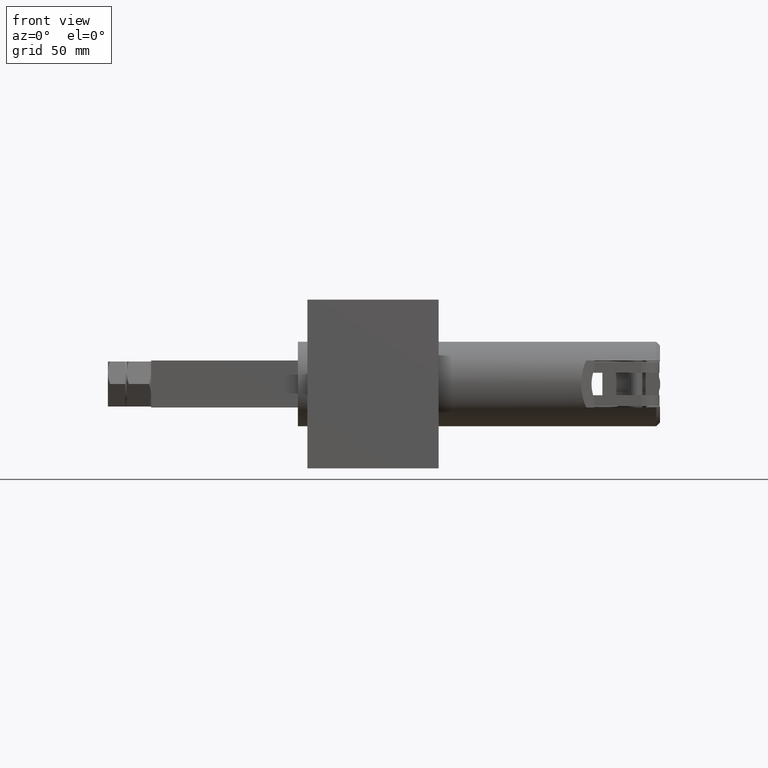
[diagram: clean part render]
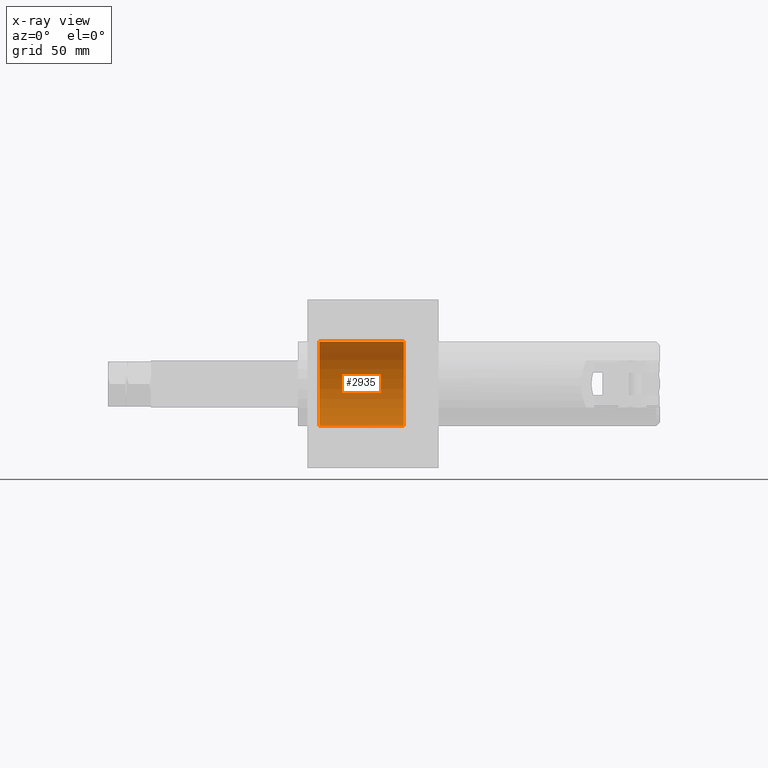
[diagram: x-ray — body ghosted, one internal face saturated and labeled with its STEP entity id]
A machine part, front view, then the same camera in x-ray: the body is ghosted and one INTERNAL B-rep face — a face not visible from any outside direction — is saturated and labeled: STEP entity #2935.
In plain terms, the highlighted cylindrical surface (partial cylindrical patch) has radius 22.5 mm, axis along (-1, 0, 0).
Its self-contained STEP definition (entity closure, byte-faithful):
#99 = ORIENTED_EDGE ( 'NONE', *, *, #3013, .F. ) ;
#145 = EDGE_CURVE ( 'NONE', #2420, #4259, #2871, .T. ) ;
#161 = CARTESIAN_POINT ( 'NONE',  ( -28.60000000000001200, 39.59999999999999400, 2.755364296100348800E-015 ) ) ;
#359 = VECTOR ( 'NONE', #1783, 1000.000000000000000 ) ;
#573 = VECTOR ( 'NONE', #1114, 1000.000000000000000 ) ;
#586 = DIRECTION ( 'NONE',  ( -1.541976423090494900E-016, 0.0000000000000000000, -1.000000000000000000 ) ) ;
#778 = CARTESIAN_POINT ( 'NONE',  ( -28.60000000000001600, 39.59999999999999400, -22.50000000000000000 ) ) ;
#939 = EDGE_LOOP ( 'NONE', ( #2053, #2711, #3952, #99 ) ) ;
#1072 = CARTESIAN_POINT ( 'NONE',  ( 16.39999999999998400, 39.59999999999999400, -22.50000000000000700 ) ) ;
#1114 = DIRECTION ( 'NONE',  ( -1.000000000000000000, 0.0000000000000000000, 1.224606353822377300E-016 ) ) ;
#1516 = AXIS2_PLACEMENT_3D ( 'NONE', #1890, #4891, #2322 ) ;
#1566 = FACE_OUTER_BOUND ( 'NONE', #939, .T. ) ;
#1596 = CARTESIAN_POINT ( 'NONE',  ( 16.39999999999999100, 39.59999999999999400, 22.50000000000000000 ) ) ;
#1686 = CARTESIAN_POINT ( 'NONE',  ( 16.39999999999998800, 39.59999999999999400, -2.755364296100348800E-015 ) ) ;
#1783 = DIRECTION ( 'NONE',  ( -1.000000000000000000, 0.0000000000000000000, 1.224606353822377300E-016 ) ) ;
#1808 = VERTEX_POINT ( 'NONE', #1072 ) ;
#1890 = CARTESIAN_POINT ( 'NONE',  ( 16.39999999999998800, 39.59999999999999400, -2.755364296100348800E-015 ) ) ;
#2015 = CARTESIAN_POINT ( 'NONE',  ( 16.39999999999999100, 39.59999999999999400, 22.50000000000000000 ) ) ;
#2053 = ORIENTED_EDGE ( 'NONE', *, *, #2605, .F. ) ;
#2322 = DIRECTION ( 'NONE',  ( -1.541976423090494900E-016, 0.0000000000000000000, -1.000000000000000000 ) ) ;
#2420 = VERTEX_POINT ( 'NONE', #1596 ) ;
#2605 = EDGE_CURVE ( 'NONE', #2420, #1808, #5192, .T. ) ;
#2711 = ORIENTED_EDGE ( 'NONE', *, *, #145, .T. ) ;
#2871 = LINE ( 'NONE', #2015, #573 ) ;
#2883 = VERTEX_POINT ( 'NONE', #778 ) ;
#2889 = CARTESIAN_POINT ( 'NONE',  ( -28.60000000000000900, 39.59999999999999400, 22.50000000000000700 ) ) ;
#2935 = ADVANCED_FACE ( 'NONE', ( #1566 ), #4720, .F. ) ;
#3013 = EDGE_CURVE ( 'NONE', #1808, #2883, #3661, .T. ) ;
#3168 = EDGE_CURVE ( 'NONE', #4259, #2883, #4378, .T. ) ;
#3181 = DIRECTION ( 'NONE',  ( -1.000000000000000000, 0.0000000000000000000, 1.224606353822377300E-016 ) ) ;
#3346 = AXIS2_PLACEMENT_3D ( 'NONE', #161, #3181, #586 ) ;
#3661 = LINE ( 'NONE', #4352, #359 ) ;
#3731 = AXIS2_PLACEMENT_3D ( 'NONE', #1686, #3834, #4262 ) ;
#3834 = DIRECTION ( 'NONE',  ( -1.000000000000000000, 0.0000000000000000000, 1.224606353822377300E-016 ) ) ;
#3952 = ORIENTED_EDGE ( 'NONE', *, *, #3168, .T. ) ;
#4259 = VERTEX_POINT ( 'NONE', #2889 ) ;
#4262 = DIRECTION ( 'NONE',  ( -1.541976423090494900E-016, 0.0000000000000000000, -1.000000000000000000 ) ) ;
#4352 = CARTESIAN_POINT ( 'NONE',  ( 16.39999999999998400, 39.59999999999999400, -22.50000000000000700 ) ) ;
#4378 = CIRCLE ( 'NONE', #3346, 22.50000000000000400 ) ;
#4720 = CYLINDRICAL_SURFACE ( 'NONE', #3731, 22.50000000000000400 ) ;
#4891 = DIRECTION ( 'NONE',  ( -1.000000000000000000, 0.0000000000000000000, 1.224606353822377300E-016 ) ) ;
#5192 = CIRCLE ( 'NONE', #1516, 22.50000000000000400 ) ;